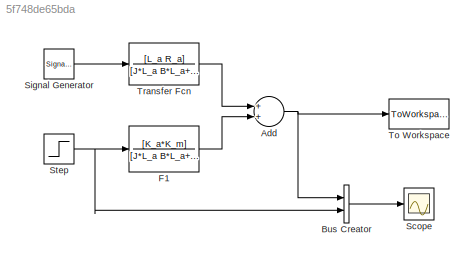
MODEL slx_5f748de65bda
KIND model
CONFIG AbsTol = auto
CONFIG EnableMultiTasking = off
CONFIG FixedStep = auto
CONFIG MaxStep = auto
CONFIG MinStep = auto
CONFIG RelTol = 1e-3
CONFIG SampleTimeConstraint = Unconstrained
CONFIG Solver = VariableStepAuto
CONFIG SolverName = VariableStepAuto
CONFIG StartTime = 0.0
CONFIG StopTime = 10.0
BLOCK [Sum] Add
  InputSameDT = off
  OutDataTypeStr = Inherit: Inherit via internal rule
  Ports = [2, 1]
  SaturateOnIntegerOverflow = off
BLOCK [BusCreator] Bus Creator
  DisplayOption = bar
  InheritFromInputs = on
  Inputs = 2
  Ports = [2, 1]
BLOCK [TransferFcn] F1
  Denominator = [J*L_a B*L_a+J*R_a B*R_a+K_m^2]
  Numerator = [K_a*K_m]
BLOCK [Scope] Scope
  Floating = off
  NumInputPorts = 1
  Ports = [1]
  ScopeSpecificationString = Simulink.scopes.TimeScopeBlockCfg('CurrentConfiguration', extmgr.ConfigurationSet(extmgr.Configuration('Core','General UI',true),extmgr.Configuration('Core','Source UI',true),extmgr.Configuration('Sources','WiredSimulink',true),extmgr.Configuration('Visuals','Time Domain',true),extmgr.Configuration('Tools','Plot Navigation',true),extmgr.Configuration('Tools','Measurements',true,'Version','2018a'))...<+19ch>
BLOCK [SignalGenerator] Signal Generator
  Amplitude = 0.05
  Frequency = 0.1
  Ports = [0, 1]
  WaveForm = square
BLOCK [Step] Step
  After = (B*R_a+K_m^2)/(K_a*K_m)
  SampleTime = 0
  Time = 0
BLOCK [ToWorkspace] To Workspace
  FixptAsFi = on
  MaxDataPoints = inf
  Ports = [1]
  SampleTime = -1
  Save2DSignal = 3-D array (concatenate along third dimension)
  SaveFormat = Timeseries
  VariableName = vel_ang
BLOCK [TransferFcn] Transfer Fcn
  Denominator = [J*L_a B*L_a+J*R_a B*R_a+K_m^2]
  Numerator = [L_a R_a]
NET Add:1 -> Bus Creator:1, To Workspace:1
LINE Bus Creator:1 -> Scope:1
LINE F1:1 -> Add:2
LINE Signal Generator:1 -> Transfer Fcn:1
NET Step:1 -> Bus Creator:2, F1:1
LINE Transfer Fcn:1 -> Add:1
note: NET lines group one-source signal fan-out (src -> all destinations, sorted); 1:1 wires keep LINE
